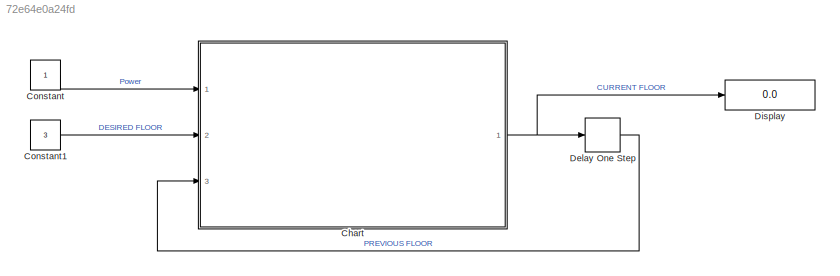
MODEL slx_72e64e0a24fd
KIND model
CONFIG AbsTol = auto
CONFIG EnableMultiTasking = off
CONFIG FixedStep = auto
CONFIG MaxStep = auto
CONFIG MinStep = auto
CONFIG RelTol = 1e-3
CONFIG SampleTimeConstraint = Unconstrained
CONFIG SolverName = VariableStepAuto
CONFIG StartTime = 0.0
CONFIG StopTime = 10.0
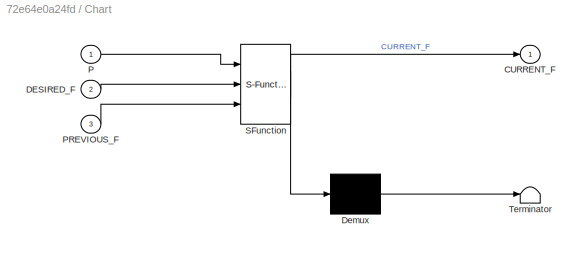
BLOCK [SubSystem] Chart
  ErrorFcn = Stateflow.Translate.translate
  PermitHierarchicalResolution = ExplicitOnly
  Ports = [3, 1]
  RequestExecContextInheritance = off
  SFBlockType = Chart
  TreatAsAtomicUnit = on
BLOCK [Demux] Chart/ Demux 
  Outputs = 1
  Ports = [1, 1]
BLOCK [S-Function] Chart/ SFunction 
  EnableBusSupport = on
  FunctionName = sf_sfun
  PortCounts = [3 2]
  Ports = [3, 2]
  SFcnIsStateOwnerBlock = off
  SFunctionDeploymentMode = off
  Tag = Stateflow S-Function 3
BLOCK [Terminator] Chart/ Terminator 
BLOCK [Outport] Chart/CURRENT_F
BLOCK [Inport] Chart/DESIRED_F
  Port = 2
BLOCK [Inport] Chart/P
BLOCK [Inport] Chart/PREVIOUS_F
  Port = 3
BLOCK [Constant] Constant
BLOCK [Constant] Constant1
  Value = 3
BLOCK [Delay] Delay One Step
  DelayLength = 1
  InputPortMap = u0
  Ports = [1, 1]
BLOCK [Display] Display
  Decimation = 1
  Ports = [1]
NET Chart:1 -> Delay One Step:1, Display:1
LINE Constant1:1 -> Chart:2
LINE Constant:1 -> Chart:1
LINE Delay One Step:1 -> Chart:3
note: NET lines group one-source signal fan-out (src -> all destinations, sorted); 1:1 wires keep LINE
CHART Chart states=4 transitions=9
  STATE_LABEL 'POWER_ON'
  STATE_LABEL 'MOVING_UP\nCURRENT_F=CURRENT_F+1'
  STATE_LABEL 'POWER_OFF\nCURRENT_F=PREVIOUS_F'
  STATE_LABEL 'MOVING_DOWN\nCURRENT_F=CURRENT_F-1'
CHART  states=0 transitions=0
